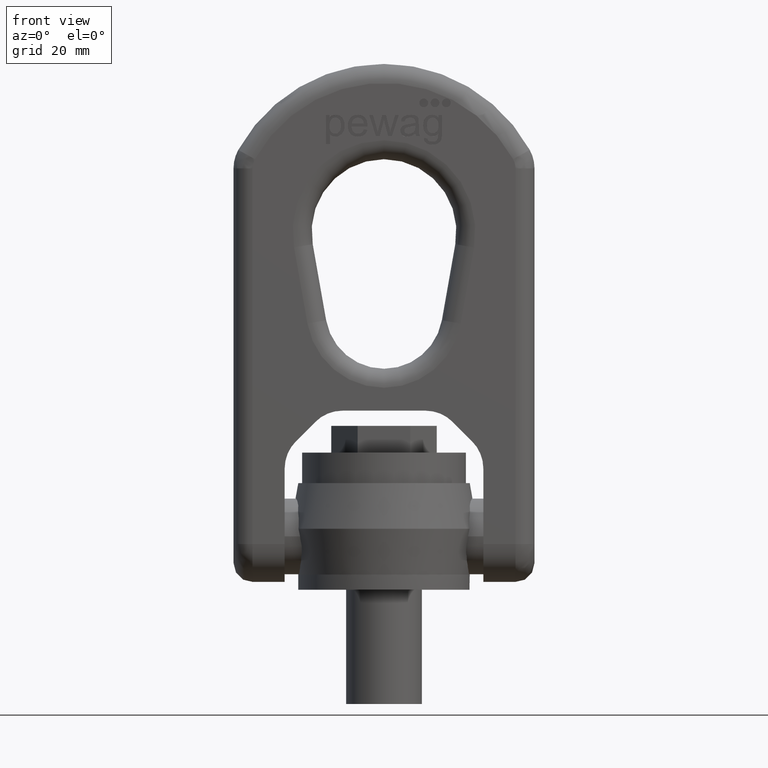
[diagram: clean part render]
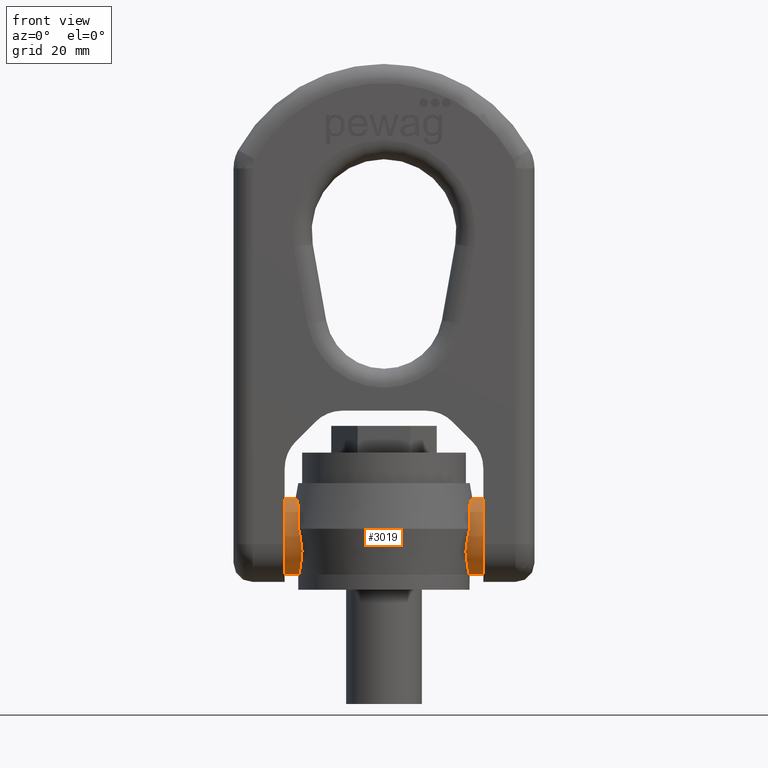
[diagram: same view with one face highlighted and labeled with its STEP entity id]
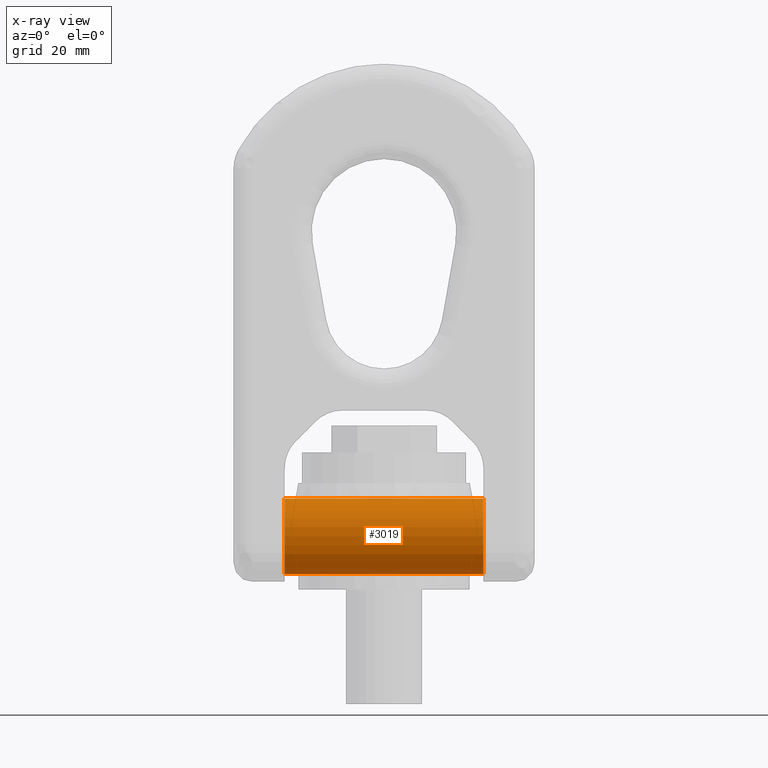
[diagram: x-ray of the same camera — body ghosted, the highlighted face saturated]
A machine part, front view. The second image highlights one B-rep face of the part: STEP entity #3019.
The next image is the same camera in x-ray: the body ghosted, the highlighted face saturated — about 0% of this face is hidden behind the body in this view.
In plain terms, the highlighted cylindrical surface (bore or boss wall) has radius 10 mm, axis along (-1, 0, 0).
Its self-contained STEP definition (entity closure, byte-faithful):
#3019=ADVANCED_FACE('',(#3135,#3136),#3060,.T.);
#3060=CYLINDRICAL_SURFACE('',#6029,10.);
#3135=FACE_BOUND('',#3411,.T.);
#3136=FACE_BOUND('',#3412,.T.);
#3411=EDGE_LOOP('',(#4613,#4614));
#3412=EDGE_LOOP('',(#4615,#4616));
#4613=ORIENTED_EDGE('',*,*,#5162,.F.);
#4614=ORIENTED_EDGE('',*,*,#5716,.F.);
#4615=ORIENTED_EDGE('',*,*,#5166,.F.);
#4616=ORIENTED_EDGE('',*,*,#5717,.F.);
#4729=VERTEX_POINT('',#7037);
#4731=VERTEX_POINT('',#7040);
#4733=VERTEX_POINT('',#7046);
#4735=VERTEX_POINT('',#7049);
#5162=EDGE_CURVE('',#4729,#4731,#5757,.T.);
#5166=EDGE_CURVE('',#4733,#4735,#5758,.T.);
#5716=EDGE_CURVE('',#4731,#4729,#5801,.T.);
#5717=EDGE_CURVE('',#4735,#4733,#5802,.T.);
#5757=CIRCLE('',#5859,10.);
#5758=CIRCLE('',#5861,10.);
#5801=CIRCLE('',#6012,10.);
#5802=CIRCLE('',#6014,10.);
#5859=AXIS2_PLACEMENT_3D('',#7039,#6165,#6166);
#5861=AXIS2_PLACEMENT_3D('',#7048,#6172,#6173);
#6012=AXIS2_PLACEMENT_3D('',#9690,#6825,#6826);
#6014=AXIS2_PLACEMENT_3D('',#9692,#6829,#6830);
#6029=AXIS2_PLACEMENT_3D('',#9714,#6866,#6867);
#6165=DIRECTION('',(-1.,0.,3.85494105772624E-16));
#6166=DIRECTION('',(-3.46944695195361E-16,0.,-1.));
#6172=DIRECTION('',(1.,0.,3.85494105772624E-16));
#6173=DIRECTION('',(-3.46944695195361E-16,0.,1.));
#6825=DIRECTION('',(-1.,0.,3.85494105772624E-16));
#6826=DIRECTION('',(-3.46944695195361E-16,0.,-1.));
#6829=DIRECTION('',(1.,0.,3.85494105772624E-16));
#6830=DIRECTION('',(-3.46944695195361E-16,0.,1.));
#6866=DIRECTION('',(-1.,0.,0.));
#6867=DIRECTION('',(0.,0.,1.));
#7037=CARTESIAN_POINT('',(-26.07,-10.,14.));
#7039=CARTESIAN_POINT('',(-26.07,0.,14.));
#7040=CARTESIAN_POINT('',(-26.07,10.0000000000001,14.));
#7046=CARTESIAN_POINT('',(26.07,-10.,14.));
#7048=CARTESIAN_POINT('',(26.07,0.,14.));
#7049=CARTESIAN_POINT('',(26.07,9.99999999999994,14.));
#9690=CARTESIAN_POINT('',(-26.07,0.,14.));
#9692=CARTESIAN_POINT('',(26.07,0.,14.));
#9714=CARTESIAN_POINT('',(39.5,0.,14.));